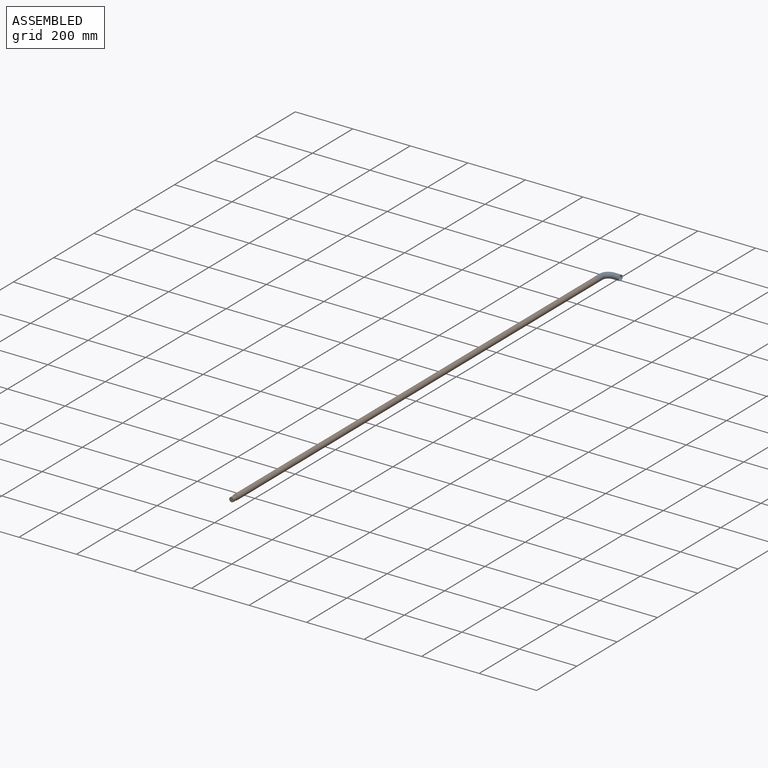
[diagram: assembled view]
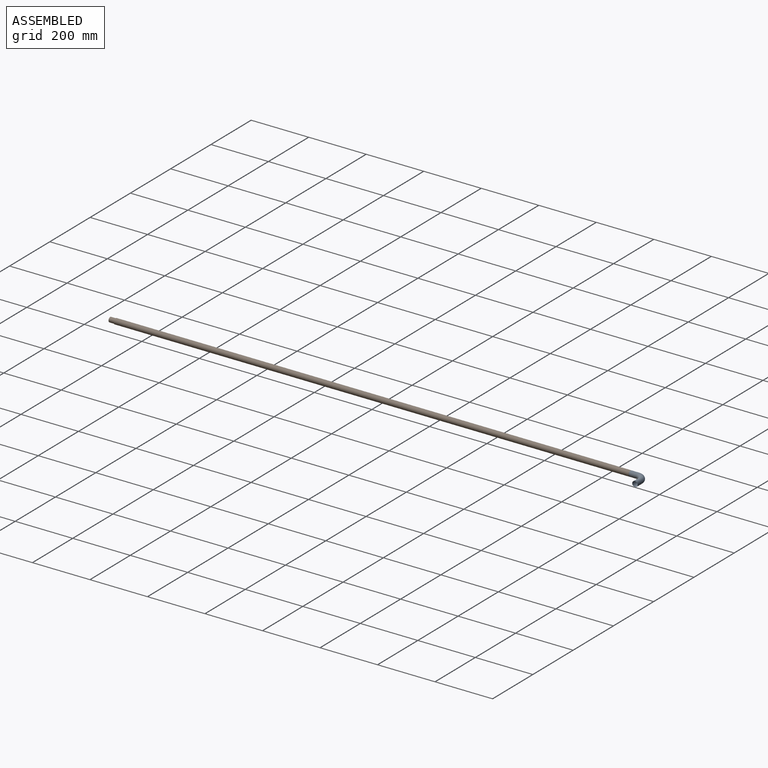
[diagram: assembled view, second angle]
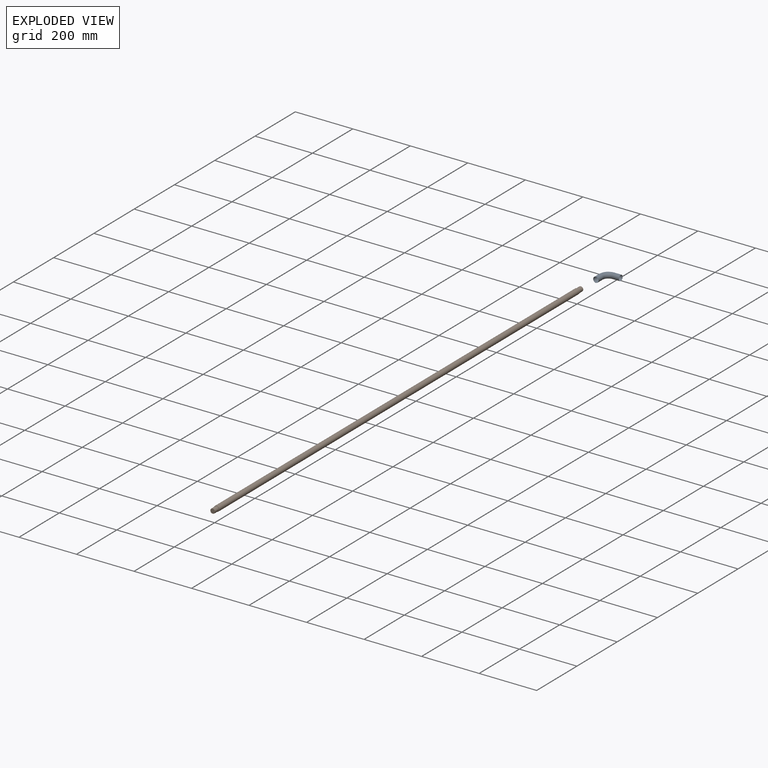
[diagram: exploded view]
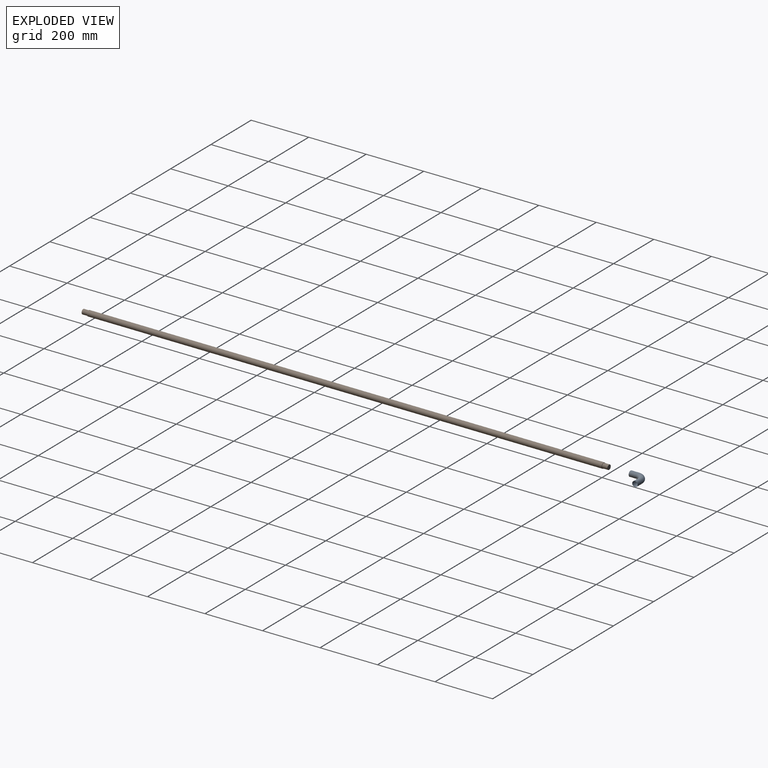
[diagram: exploded view, second angle]
ASSEMBLY  parts=2 mates=2
PART A: 8 faces, bbox 63.2x63.2x19.1 mm
  f0: cylinder r=9.27mm len=25.4mm, axis (0,1,0), area 1479.6mm2, adj f1,f3
  f1: torus R=25.4mm, axis (0,0,-1), area 2324.1mm2, adj f0,f2
  f2: cylinder r=9.27mm len=25.4mm, axis (1,0,0), area 1479.6mm2, adj f1,f4
  f3: plane 19.05x19.05mm, normal (0,-1,0), area 15mm2, adj f0,f5
  f4: plane 19.05x19.05mm, normal (1,0,0), area 15mm2, adj f2,f7
  f5: cylinder r=9.53mm len=25.4mm, axis (0,1,0), area 1520.1mm2, adj f3,f6
  f6: torus R=25.4mm, axis (0,0,-1), area 2387.8mm2, adj f5,f7
  f7: cylinder r=9.53mm len=25.4mm, axis (1,0,0), area 1520.1mm2, adj f4,f6
PART B: 11 faces, bbox 1828.8x19.1x19.1 mm
  f0: plane 16x16mm, normal (1,0,0), area 201.1mm2, adj f7
  f1: cylinder r=8.26mm len=18.8mm, axis (-1,0,0), area 974.9mm2, adj f2,f7
  f2: plane 18.54x18.54mm, normal (1,0,0), area 55.9mm2, adj f1,f8
  f3: cylinder r=9.53mm len=1790.19mm, axis (-1,0,0), area 107138.2mm2, adj f8,f9
  f4: plane 18.54x18.54mm, normal (-1,0,0), area 55.9mm2, adj f5,f9
  f5: cylinder r=8.26mm len=18.8mm, axis (-1,0,0), area 974.9mm2, adj f4,f10
  f6: plane 16x16mm, normal (-1,0,0), area 201.1mm2, adj f10
  f7: cone r=8.26mm half-angle=45deg, axis (-1,0,0), area 18.3mm2, adj f0,f1
  f8: cone r=9.53mm half-angle=45deg, axis (-1,0,0), area 21.2mm2, adj f2,f3
  f9: cone r=9.27mm half-angle=45deg, axis (1,0,0), area 21.2mm2, adj f3,f4
  f10: cone r=8mm half-angle=45deg, axis (1,0,0), area 18.3mm2, adj f5,f6
PLACE A t=(-2.78,-702.28,31.41)mm
PLACE B rot(axis=(0.71,0.71,0),180deg) t=(-2.78,-1597.63,31.41)mm
MATE planar A.f5 <-> B.f1  axis (0,-1,0) through (-2.78,-702.28,31.41)mm
MATE cylindrical A.f0 <-> B.f1  axis (0,1,0) through (-2.78,-702.28,31.41)mm
